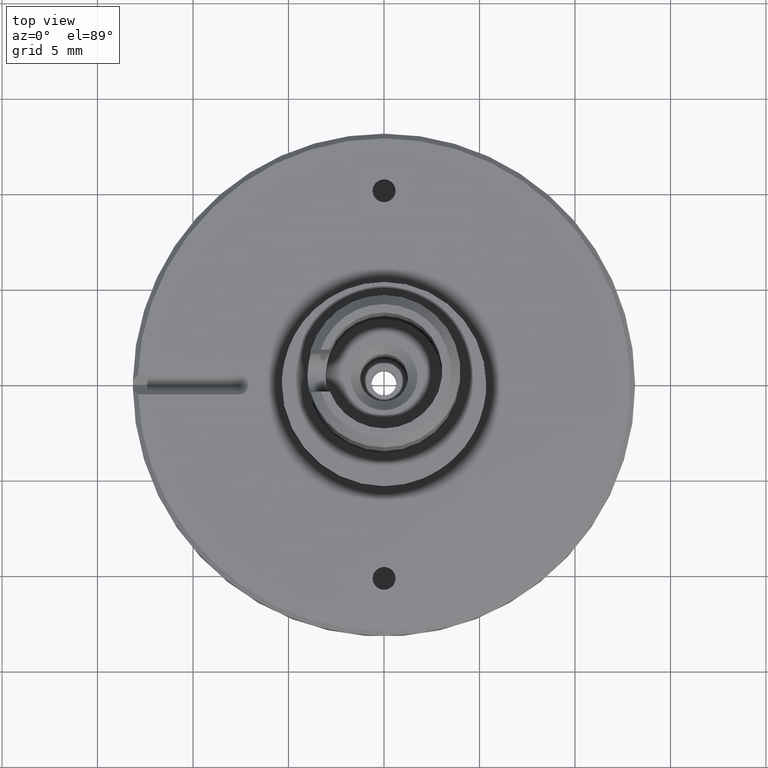
[diagram: clean part render]
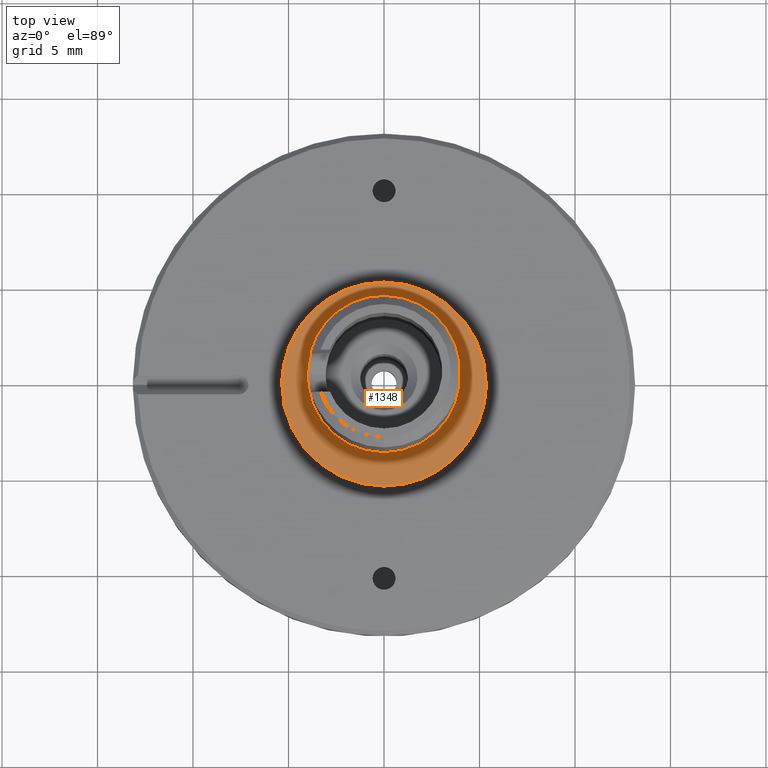
[diagram: same view with one face highlighted and labeled with its STEP entity id]
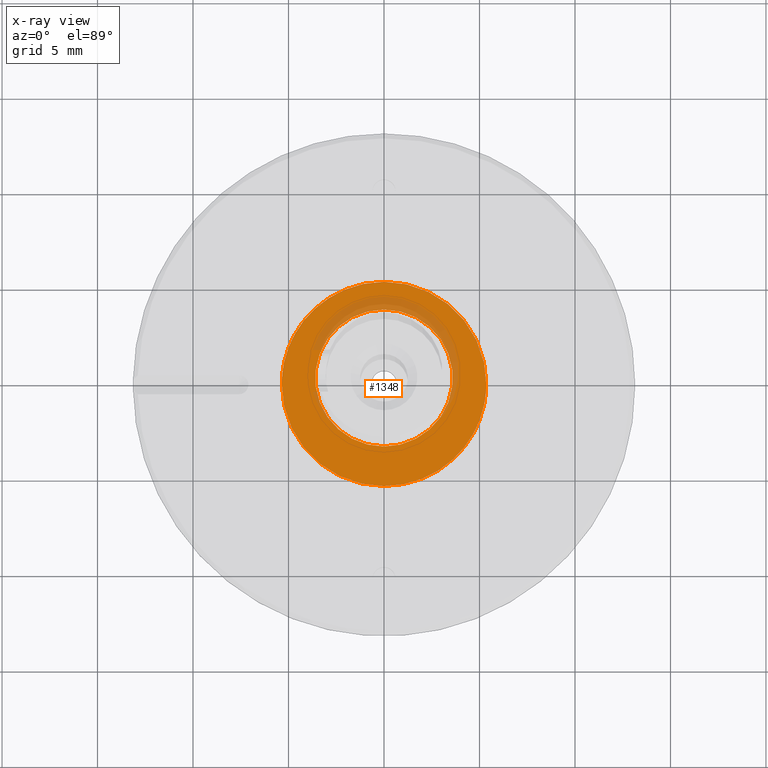
[diagram: x-ray of the same camera — body ghosted, the highlighted face saturated]
A machine part, top view. The second image highlights one B-rep face of the part: STEP entity #1348.
The next image is the same camera in x-ray: the body ghosted, the highlighted face saturated — about 13% of this face is hidden behind the body in this view.
In plain terms, the highlighted planar face has unit normal (0, -0.0706, -0.9975).
Its self-contained STEP definition (entity closure, byte-faithful):
#54 = CARTESIAN_POINT ( 'NONE',  ( -5.414200000000000124, -5.414200000000000124, 4.804545603999999415 ) ) ;
#85 = ORIENTED_EDGE ( 'NONE', *, *, #153, .F. ) ;
#104 = DIRECTION ( 'NONE',  ( 1.159119703532601070E-16, 0.07062698593101975064, 0.9975027964162804794 ) ) ;
#153 = EDGE_CURVE ( 'NONE', #918, #1316, #203, .T. ) ;
#173 = DIRECTION ( 'NONE',  ( 0.000000000000000000, 0.9975027964167093586, -0.07062698592496319261 ) ) ;
#203 = CIRCLE ( 'NONE', #297, 3.600000000053293903 ) ;
#240 = ORIENTED_EDGE ( 'NONE', *, *, #995, .T. ) ;
#244 = EDGE_LOOP ( 'NONE', ( #1067, #240 ) ) ;
#297 = AXIS2_PLACEMENT_3D ( 'NONE', #953, #398, #1372 ) ;
#350 = CARTESIAN_POINT ( 'NONE',  ( -5.349999999999999645, 0.000000000000000000, 4.421199684000000296 ) ) ;
#398 = DIRECTION ( 'NONE',  ( 1.159119703532601070E-16, 0.07062698593101975064, 0.9975027964162804794 ) ) ;
#411 = CARTESIAN_POINT ( 'NONE',  ( 5.349999999999999645, 6.551860375438339695E-16, 4.421199684000000296 ) ) ;
#422 = CARTESIAN_POINT ( 'NONE',  ( 5.349999999999997868, -10.69999999999999929, 5.178800316411066085 ) ) ;
#465 = CARTESIAN_POINT ( 'NONE',  ( 4.408728476995738051E-16, 3.902486308127487202, 4.144888833301595632 ) ) ;
#545 = CARTESIAN_POINT ( 'NONE',  ( 5.349999999999999645, 6.551860375438339695E-16, 4.421199684000000296 ) ) ;
#561 = CIRCLE ( 'NONE', #1400, 3.600000000053293903 ) ;
#575 = EDGE_CURVE ( 'NONE', #812, #1282, #1640, .T. ) ;
#634 = ORIENTED_EDGE ( 'NONE', *, *, #1236, .F. ) ;
#683 = CARTESIAN_POINT ( 'NONE',  ( -5.349999999999998757, 10.69999999999999751, 3.663599051588934952 ) ) ;
#705 = CARTESIAN_POINT ( 'NONE',  ( -5.349999999999997868, -10.69999999999999751, 5.178800316411066085 ) ) ;
#710 = CARTESIAN_POINT ( 'NONE',  ( 5.350000000000001421, 10.69999999999999574, 3.663599051588934952 ) ) ;
#812 = VERTEX_POINT ( 'NONE', #350 ) ;
#918 = VERTEX_POINT ( 'NONE', #1468 ) ;
#953 = CARTESIAN_POINT ( 'NONE',  ( -4.398520352592799990E-32, 0.3114762409757165784, 4.399145982657030274 ) ) ;
#956 = CARTESIAN_POINT ( 'NONE',  ( -5.349999999999999645, 0.000000000000000000, 4.421199684000000296 ) ) ;
#995 = EDGE_CURVE ( 'NONE', #1282, #812, #1024, .T. ) ;
#1024 =( BOUNDED_CURVE ( )  B_SPLINE_CURVE ( 3, ( #411, #710, #683, #956 ),
 .UNSPECIFIED., .F., .T. ) 
 B_SPLINE_CURVE_WITH_KNOTS ( ( 4, 4 ),
 ( 4.712388980384689674, 7.853981633974482790 ),
 .UNSPECIFIED. ) 
 CURVE ( )  GEOMETRIC_REPRESENTATION_ITEM ( )  RATIONAL_B_SPLINE_CURVE ( ( 1.000000000000000000, 0.3333333333333333703, 0.3333333333333333703, 1.000000000000000000 ) ) 
 REPRESENTATION_ITEM ( '' )  );
#1067 = ORIENTED_EDGE ( 'NONE', *, *, #575, .T. ) ;
#1105 = CARTESIAN_POINT ( 'NONE',  ( -4.398520352592799990E-32, 0.3114762409757165784, 4.399145982657030274 ) ) ;
#1137 = FACE_OUTER_BOUND ( 'NONE', #244, .T. ) ;
#1236 = EDGE_CURVE ( 'NONE', #1316, #918, #561, .T. ) ;
#1260 = EDGE_LOOP ( 'NONE', ( #85, #634 ) ) ;
#1280 = DIRECTION ( 'NONE',  ( 0.000000000000000000, -0.07062698592496319261, -0.9975027964167093586 ) ) ;
#1282 = VERTEX_POINT ( 'NONE', #1627 ) ;
#1316 = VERTEX_POINT ( 'NONE', #465 ) ;
#1348 = ADVANCED_FACE ( 'NONE', ( #1503, #1137 ), #1649, .F. ) ;
#1369 = CARTESIAN_POINT ( 'NONE',  ( -5.349999999999999645, 0.000000000000000000, 4.421199684000000296 ) ) ;
#1372 = DIRECTION ( 'NONE',  ( 0.000000000000000000, -0.9975027964162804794, 0.07062698593101975064 ) ) ;
#1400 = AXIS2_PLACEMENT_3D ( 'NONE', #1105, #104, #1620 ) ;
#1468 = CARTESIAN_POINT ( 'NONE',  ( 6.283600503703998422E-33, -3.279533826176054045, 4.653403132012465804 ) ) ;
#1503 = FACE_BOUND ( 'NONE', #1260, .T. ) ;
#1620 = DIRECTION ( 'NONE',  ( 0.000000000000000000, -0.9975027964162804794, 0.07062698593101975064 ) ) ;
#1627 = CARTESIAN_POINT ( 'NONE',  ( 5.349999999999999645, 6.551860375438339695E-16, 4.421199684000000296 ) ) ;
#1640 =( BOUNDED_CURVE ( )  B_SPLINE_CURVE ( 3, ( #1369, #705, #422, #545 ),
 .UNSPECIFIED., .F., .T. ) 
 B_SPLINE_CURVE_WITH_KNOTS ( ( 4, 4 ),
 ( 1.570796326794896780, 4.712388980384689674 ),
 .UNSPECIFIED. ) 
 CURVE ( )  GEOMETRIC_REPRESENTATION_ITEM ( )  RATIONAL_B_SPLINE_CURVE ( ( 1.000000000000000000, 0.3333333333333333703, 0.3333333333333333703, 1.000000000000000000 ) ) 
 REPRESENTATION_ITEM ( '' )  );
#1649 = PLANE ( 'NONE',  #1682 ) ;
#1682 = AXIS2_PLACEMENT_3D ( 'NONE', #54, #1280, #173 ) ;